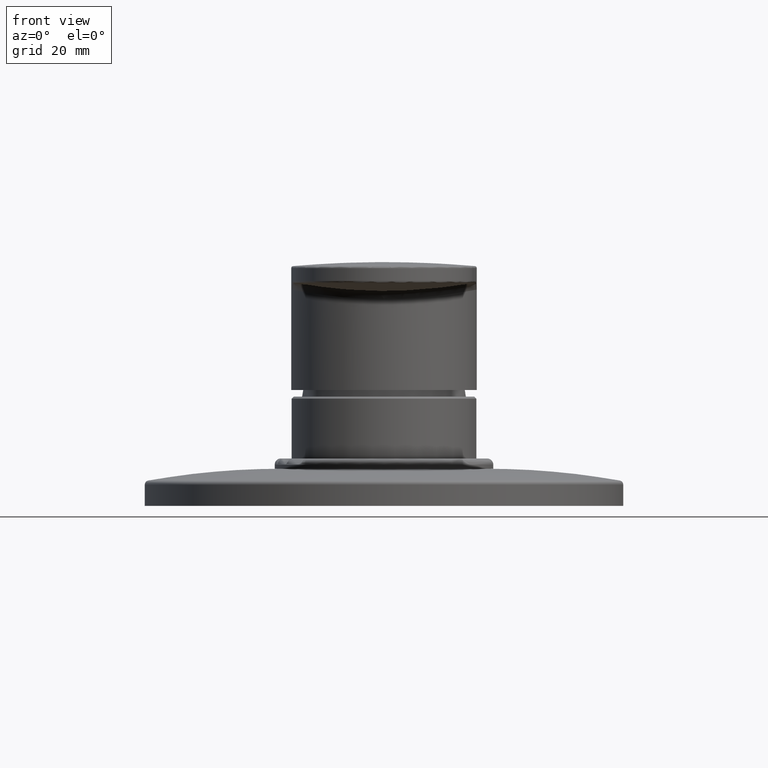
[diagram: clean part render]
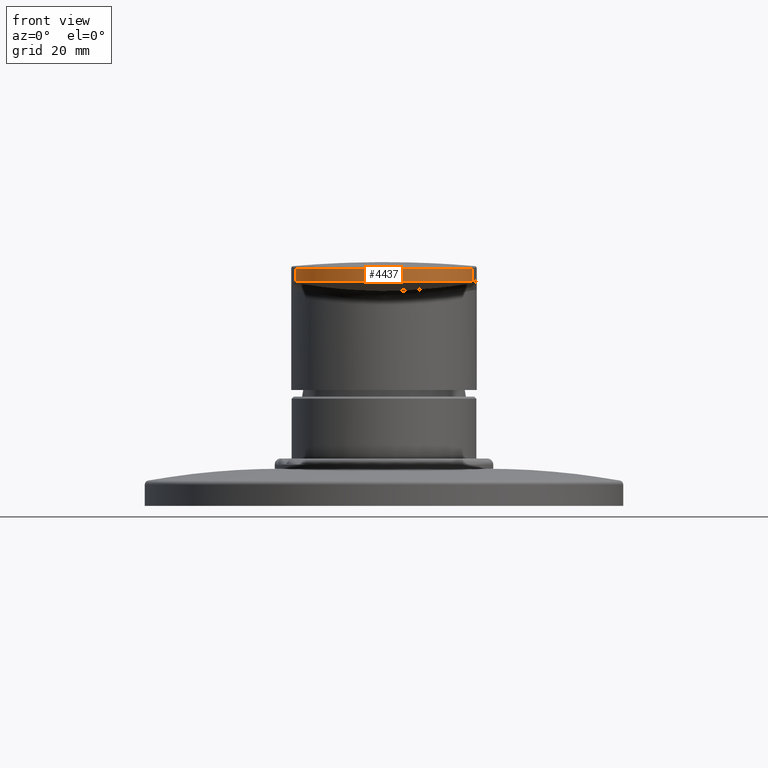
[diagram: same view with one face highlighted and labeled with its STEP entity id]
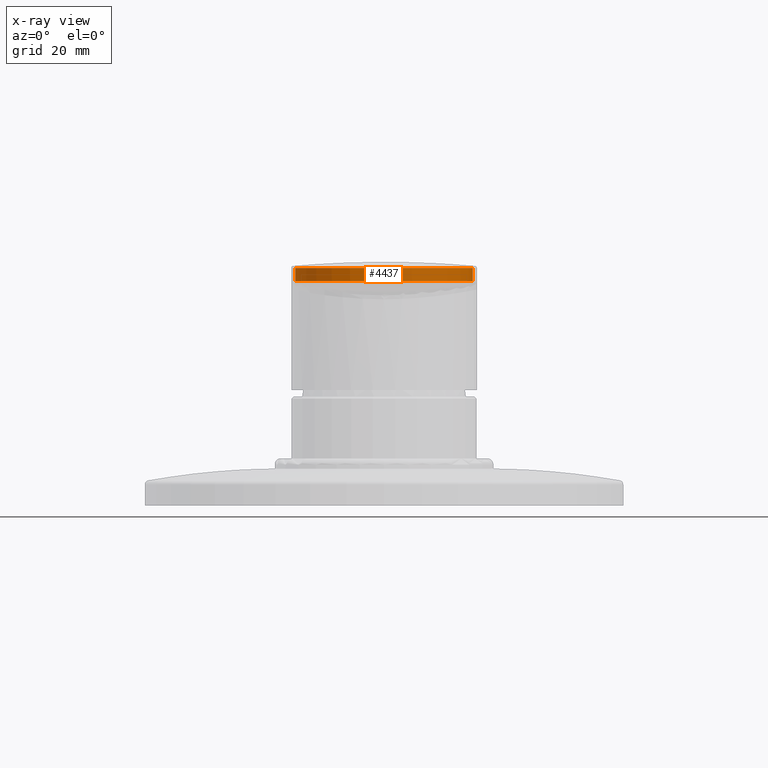
[diagram: x-ray of the same camera — body ghosted, the highlighted face saturated]
A machine part, front view. The second image highlights one B-rep face of the part: STEP entity #4437.
The next image is the same camera in x-ray: the body ghosted, the highlighted face saturated — about 0% of this face is hidden behind the body in this view.
In plain terms, the highlighted cylindrical surface (partial cylindrical patch) has radius 21.5 mm, axis along (0, 0, 1).
Its self-contained STEP definition (entity closure, byte-faithful):
#1734=CARTESIAN_POINT('',(2.149360380976E1,-4.152439023814E1,9.764343521014E1));
#1735=CARTESIAN_POINT('',(2.148554348504E1,-4.185469745667E1,9.764319577040E1));
#1736=CARTESIAN_POINT('',(2.145419893344E1,-4.251492851254E1,9.764274942118E1));
#1737=CARTESIAN_POINT('',(2.136158280484E1,-4.350206803126E1,9.764218639464E1));
#1738=CARTESIAN_POINT('',(2.122359385658E1,-4.448375930851E1,9.764173946256E1));
#1739=CARTESIAN_POINT('',(2.104051492699E1,-4.545805976151E1,9.764140386473E1));
#1740=CARTESIAN_POINT('',(2.081269697650E1,-4.642304277861E1,9.764117623653E1));
#1741=CARTESIAN_POINT('',(2.063131750310E1,-4.705868995830E1,9.764108557347E1));
#1742=CARTESIAN_POINT('',(2.053335345753E1,-4.737426663922E1,9.764105282116E1));
#1744=CARTESIAN_POINT('',(2.149360359549E1,-4.152439023291E1,9.451711591597E1));
#1745=CARTESIAN_POINT('',(2.148561598144E1,-4.185169888662E1,9.451754295465E1));
#1746=CARTESIAN_POINT('',(2.145469442280E1,-4.250591684149E1,9.451834106733E1));
#1747=CARTESIAN_POINT('',(2.136354682308E1,-4.348403126590E1,9.451935011363E1));
#1748=CARTESIAN_POINT('',(2.122786035070E1,-4.445679471936E1,9.452015015758E1));
#1749=CARTESIAN_POINT('',(2.104790725387E1,-4.542234446395E1,9.452074982006E1));
#1750=CARTESIAN_POINT('',(2.082402304236E1,-4.637882647775E1,9.452115407327E1));
#1751=CARTESIAN_POINT('',(2.064578717386E1,-4.700903393612E1,9.452131452776E1));
#1752=CARTESIAN_POINT('',(2.054952096438E1,-4.732195427945E1,9.452137268191E1));
#1754=CARTESIAN_POINT('',(2.054952096438E1,-4.732195427945E1,9.452137268191E1));
#1755=CARTESIAN_POINT('',(2.044014135280E1,-4.767747531587E1,9.452143783137E1));
#1756=CARTESIAN_POINT('',(2.020293585172E1,-4.838288028783E1,9.452159386465E1));
#1757=CARTESIAN_POINT('',(1.979261130280E1,-4.942127919107E1,9.452185281308E1));
#1758=CARTESIAN_POINT('',(1.932899167469E1,-5.043692059420E1,9.452207180482E1));
#1759=CARTESIAN_POINT('',(1.881328418749E1,-5.142716786358E1,9.452224259776E1));
#1760=CARTESIAN_POINT('',(1.824676520996E1,-5.238952417575E1,9.452236666309E1));
#1761=CARTESIAN_POINT('',(1.763094504038E1,-5.332134385539E1,9.452247164131E1));
#1762=CARTESIAN_POINT('',(1.696763634442E1,-5.421986968586E1,9.452261757914E1));
#1763=CARTESIAN_POINT('',(1.625861994312E1,-5.508271881601E1,9.452276417153E1));
#1764=CARTESIAN_POINT('',(1.550567605792E1,-5.590770912779E1,9.452284362295E1));
#1765=CARTESIAN_POINT('',(1.471089230931E1,-5.669252765031E1,9.452283941581E1));
#1766=CARTESIAN_POINT('',(1.387643808770E1,-5.743503163374E1,9.452274855945E1));
#1767=CARTESIAN_POINT('',(1.300452647267E1,-5.813324597951E1,9.452259387429E1));
#1768=CARTESIAN_POINT('',(1.209753040593E1,-5.878526338974E1,9.452244114408E1));
#1769=CARTESIAN_POINT('',(1.115788932057E1,-5.938932741262E1,9.452225698460E1));
#1770=CARTESIAN_POINT('',(1.018813087086E1,-5.994380807875E1,9.452198075831E1));
#1771=CARTESIAN_POINT('',(9.190874145006E0,-6.044720345374E1,9.452158060178E1));
#1772=CARTESIAN_POINT('',(8.168809179331E0,-6.08981522E1,9.452105154480E1));
#1773=CARTESIAN_POINT('',(7.124694302930E0,-6.129543404532E1,9.452040715558E1));
#1774=CARTESIAN_POINT('',(6.061348538438E0,-6.163797439896E1,9.451970325427E1));
#1775=CARTESIAN_POINT('',(4.981638119132E0,-6.192484606837E1,9.451893380932E1));
#1776=CARTESIAN_POINT('',(3.888496898482E0,-6.215527397076E1,9.451803163612E1));
#1777=CARTESIAN_POINT('',(2.784796299354E0,-6.232863358351E1,9.451691838175E1));
#1778=CARTESIAN_POINT('',(1.673808953471E0,-6.244446062845E1,9.451574137426E1));
#1779=CARTESIAN_POINT('',(5.574287589400E-1,-6.250242475809E1,
9.451392346433E1));
#1780=CARTESIAN_POINT('',(-5.572062438756E-1,-6.250243054513E1,
9.451392298475E1));
#1781=CARTESIAN_POINT('',(-1.673588766184E0,-6.244447784453E1,
9.451574115259E1));
#1782=CARTESIAN_POINT('',(-2.784579084451E0,-6.232866198396E1,
9.451691813561E1));
#1783=CARTESIAN_POINT('',(-3.888284167369E0,-6.215531311648E1,
9.451803145265E1));
#1784=CARTESIAN_POINT('',(-4.981429939003E0,-6.192489567471E1,
9.451893362367E1));
#1785=CARTESIAN_POINT('',(-6.061146262652E0,-6.163803387142E1,
9.451970325985E1));
#1786=CARTESIAN_POINT('',(-7.124498846953E0,-6.129550272262E1,
9.452040705181E1));
#1787=CARTESIAN_POINT('',(-8.168620492142E0,-6.089822971767E1,
9.452105138720E1));
#1788=CARTESIAN_POINT('',(-9.190692385781E0,-6.044728940566E1,
9.452158057096E1));
#1789=CARTESIAN_POINT('',(-1.018795665785E1,-5.994390185826E1,
9.452198051346E1));
#1790=CARTESIAN_POINT('',(-1.115772549033E1,-5.938942696960E1,
9.452225752607E1));
#1791=CARTESIAN_POINT('',(-1.209737868651E1,-5.878536676034E1,
9.452243992858E1));
#1792=CARTESIAN_POINT('',(-1.300438670750E1,-5.813335223773E1,
9.452259545161E1));
#1793=CARTESIAN_POINT('',(-1.387631148064E1,-5.743513882077E1,
9.452274762307E1));
#1794=CARTESIAN_POINT('',(-1.471078037538E1,-5.669263274111E1,
9.452283975204E1));
#1795=CARTESIAN_POINT('',(-1.550557271144E1,-5.590781686982E1,
9.452284361746E1));
#1796=CARTESIAN_POINT('',(-1.625853537396E1,-5.508281710480E1,
9.452276369812E1));
#1797=CARTESIAN_POINT('',(-1.696756837964E1,-5.421995710737E1,
9.452261919321E1));
#1798=CARTESIAN_POINT('',(-1.763088090995E1,-5.332143566304E1,
9.452247065262E1));
#1799=CARTESIAN_POINT('',(-1.824671395055E1,-5.238960718653E1,
9.452236555841E1));
#1800=CARTESIAN_POINT('',(-1.881325364533E1,-5.142722416433E1,
9.452224339855E1));
#1801=CARTESIAN_POINT('',(-1.932897569141E1,-5.043695412444E1,
9.452207194824E1));
#1802=CARTESIAN_POINT('',(-1.979260426914E1,-4.942129668252E1,
9.452185282610E1));
#1803=CARTESIAN_POINT('',(-2.020293541391E1,-4.838288151155E1,
9.452159400690E1));
#1804=CARTESIAN_POINT('',(-2.044014195088E1,-4.767747478986E1,
9.452143786750E1));
#1805=CARTESIAN_POINT('',(-2.054952108316E1,-4.732195431608E1,
9.452137268191E1));
#1807=CARTESIAN_POINT('',(-2.054952108316E1,-4.732195431608E1,
9.452137268191E1));
#1808=CARTESIAN_POINT('',(-2.064579212536E1,-4.700901843967E1,
9.452131453118E1));
#1809=CARTESIAN_POINT('',(-2.082403563831E1,-4.637878039862E1,
9.452115412718E1));
#1810=CARTESIAN_POINT('',(-2.104792794522E1,-4.542224944671E1,
9.452074973539E1));
#1811=CARTESIAN_POINT('',(-2.122788203258E1,-4.445666380383E1,
9.452015011933E1));
#1812=CARTESIAN_POINT('',(-2.136356351662E1,-4.348388776771E1,
9.451934996816E1));
#1813=CARTESIAN_POINT('',(-2.145470106112E1,-4.250580387221E1,
9.451834094229E1));
#1814=CARTESIAN_POINT('',(-2.148561770690E1,-4.185165431658E1,
9.451754297469E1));
#1815=CARTESIAN_POINT('',(-2.149360379656E1,-4.152439023782E1,
9.451711591597E1));
#1817=DIRECTION('',(-7.539721465598E-9,-1.840631380988E-10,-1.E0));
#1818=VECTOR('',#1817,3.126319294165E0);
#1819=CARTESIAN_POINT('',(-2.149360377299E1,-4.152439023725E1,
9.764343521014E1));
#1820=LINE('',#1819,#1818);
#1821=CARTESIAN_POINT('',(-2.053335361434E1,-4.737426668807E1,
9.764105282116E1));
#1822=CARTESIAN_POINT('',(-2.063131662073E1,-4.705869332202E1,
9.764108557368E1));
#1823=CARTESIAN_POINT('',(-2.081269417708E1,-4.642305259208E1,
9.764117624155E1));
#1824=CARTESIAN_POINT('',(-2.104051048397E1,-4.545808010265E1,
9.764140385557E1));
#1825=CARTESIAN_POINT('',(-2.122358917098E1,-4.448378733433E1,
9.764173945698E1));
#1826=CARTESIAN_POINT('',(-2.136157920448E1,-4.350209876909E1,
9.764218637721E1));
#1827=CARTESIAN_POINT('',(-2.145419750530E1,-4.251495268580E1,
9.764274940653E1));
#1828=CARTESIAN_POINT('',(-2.148554311437E1,-4.185470699325E1,
9.764319577211E1));
#1829=CARTESIAN_POINT('',(-2.149360377299E1,-4.152439023725E1,
9.764343521014E1));
#1831=CARTESIAN_POINT('',(2.053335345753E1,-4.737426663922E1,9.764105282116E1));
#1832=CARTESIAN_POINT('',(2.042325913306E1,-4.772889234283E1,9.764101652832E1));
#1833=CARTESIAN_POINT('',(2.018471518871E1,-4.843245117772E1,9.764093073665E1));
#1834=CARTESIAN_POINT('',(1.977266161647E1,-4.946791984963E1,9.764078944998E1));
#1835=CARTESIAN_POINT('',(1.930759713323E1,-5.048053133195E1,9.764066790595E1));
#1836=CARTESIAN_POINT('',(1.879071003719E1,-5.146771684197E1,9.764056926836E1));
#1837=CARTESIAN_POINT('',(1.822327165042E1,-5.242700496782E1,9.764049711293E1));
#1838=CARTESIAN_POINT('',(1.760680885177E1,-5.335574183119E1,9.764043232990E1));
#1839=CARTESIAN_POINT('',(1.694312833959E1,-5.425120289126E1,9.764034689347E1));
#1840=CARTESIAN_POINT('',(1.623397816046E1,-5.511105906881E1,9.764026704163E1));
#1841=CARTESIAN_POINT('',(1.548115390052E1,-5.593311660844E1,9.764021875842E1));
#1842=CARTESIAN_POINT('',(1.468674553846E1,-5.671507525742E1,9.764021412838E1));
#1843=CARTESIAN_POINT('',(1.385289060663E1,-5.745483296817E1,9.764025560743E1));
#1844=CARTESIAN_POINT('',(1.298180361859E1,-5.815041976472E1,9.764032833681E1));
#1845=CARTESIAN_POINT('',(1.207584347222E1,-5.879994754103E1,9.764040768614E1));
#1846=CARTESIAN_POINT('',(1.113743597513E1,-5.940167556435E1,9.764050183030E1));
#1847=CARTESIAN_POINT('',(1.016909610067E1,-5.995398747632E1,9.764064687010E1));
#1848=CARTESIAN_POINT('',(9.173428264306E0,-6.045539464977E1,9.764085603154E1));
#1849=CARTESIAN_POINT('',(8.153106573141E0,-6.090454798127E1,9.764113338577E1));
#1850=CARTESIAN_POINT('',(7.110873375893E0,-6.130023801609E1,9.764147261336E1));
#1851=CARTESIAN_POINT('',(6.049530072981E0,-6.164139964079E1,9.764184736064E1));
#1852=CARTESIAN_POINT('',(4.971927188554E0,-6.192711468138E1,9.764226053538E1));
#1853=CARTESIAN_POINT('',(3.880964997891E0,-6.215661445741E1,9.764274523703E1));
#1854=CARTESIAN_POINT('',(2.779554946983E0,-6.232928073902E1,9.764334216352E1));
#1855=CARTESIAN_POINT('',(1.670733721937E0,-6.244464991588E1,9.764397414262E1));
#1856=CARTESIAN_POINT('',(5.571919785071E-1,-6.250240680793E1,
9.764494335580E1));
#1857=CARTESIAN_POINT('',(-5.569954875632E-1,-6.250241190980E1,
9.764494357739E1));
#1858=CARTESIAN_POINT('',(-1.670538813021E0,-6.244466512170E1,
9.764397425013E1));
#1859=CARTESIAN_POINT('',(-2.779362334015E0,-6.232930586190E1,
9.764334227869E1));
#1860=CARTESIAN_POINT('',(-3.880775390871E0,-6.215664926651E1,
9.764274533070E1));
#1861=CARTESIAN_POINT('',(-4.971741419238E0,-6.192715885288E1,
9.764226060232E1));
#1862=CARTESIAN_POINT('',(-6.049349084281E0,-6.164145273021E1,
9.764184745786E1));
#1863=CARTESIAN_POINT('',(-7.110698094977E0,-6.130029947224E1,
9.764147265695E1));
#1864=CARTESIAN_POINT('',(-8.152937949968E0,-6.090461711920E1,
9.764113343022E1));
#1865=CARTESIAN_POINT('',(-9.173267065600E0,-6.045547074139E1,
9.764085605346E1));
#1866=CARTESIAN_POINT('',(-1.016894334112E1,-5.995406953002E1,
9.764064698248E1));
#1867=CARTESIAN_POINT('',(-1.113729213310E1,-5.940176274303E1,
9.764050162983E1));
#1868=CARTESIAN_POINT('',(-1.207570989507E1,-5.880003830633E1,
9.764040819850E1));
#1869=CARTESIAN_POINT('',(-1.298168004382E1,-5.815051342698E1,
9.764032790536E1));
#1870=CARTESIAN_POINT('',(-1.385277758956E1,-5.745492835981E1,
9.764025573715E1));
#1871=CARTESIAN_POINT('',(-1.468664597361E1,-5.671516846410E1,
9.764021415477E1));
#1872=CARTESIAN_POINT('',(-1.548106147052E1,-5.593321258879E1,
9.764021855222E1));
#1873=CARTESIAN_POINT('',(-1.623390098378E1,-5.511114845350E1,
9.764026748119E1));
#1874=CARTESIAN_POINT('',(-1.694306795654E1,-5.425128032065E1,
9.764034625366E1));
#1875=CARTESIAN_POINT('',(-1.760675094212E1,-5.335582427534E1,
9.764043210527E1));
#1876=CARTESIAN_POINT('',(-1.822322360676E1,-5.242708235007E1,
9.764049773644E1));
#1877=CARTESIAN_POINT('',(-1.879068160931E1,-5.146776902423E1,
9.764056903126E1));
#1878=CARTESIAN_POINT('',(-1.930758243859E1,-5.048056196521E1,
9.764066779571E1));
#1879=CARTESIAN_POINT('',(-1.977265470397E1,-4.946793681194E1,
9.764078945629E1));
#1880=CARTESIAN_POINT('',(-2.018471399065E1,-4.843245436792E1,
9.764093065428E1));
#1881=CARTESIAN_POINT('',(-2.042325946326E1,-4.772889280095E1,
9.764101651531E1));
#1882=CARTESIAN_POINT('',(-2.053335361434E1,-4.737426668807E1,
9.764105282116E1));
#1911=CARTESIAN_POINT('',(-2.149360379656E1,-4.152439023782E1,
9.451711591597E1));
#1992=CARTESIAN_POINT('',(2.149360380976E1,-4.152439023814E1,9.764343521014E1));
#2034=DIRECTION('',(-6.853641039117E-8,1.674302723744E-9,-1.E0));
#2035=VECTOR('',#2034,3.126319294165E0);
#2036=CARTESIAN_POINT('',(2.149360380976E1,-4.152439023814E1,9.764343521014E1));
#2037=LINE('',#2036,#2035);
#3577=VERTEX_POINT('',#1992);
#3580=VERTEX_POINT('',#1742);
#3582=VERTEX_POINT('',#1882);
#3584=VERTEX_POINT('',#1829);
#3606=VERTEX_POINT('',#1911);
#3608=VERTEX_POINT('',#1807);
#3610=VERTEX_POINT('',#1754);
#3612=VERTEX_POINT('',#1744);
#4416=CARTESIAN_POINT('',(5.855672791745E-14,-4.1E1,9.41E1));
#4417=DIRECTION('',(0.E0,0.E0,1.E0));
#4418=DIRECTION('',(1.E0,0.E0,0.E0));
#4419=AXIS2_PLACEMENT_3D('',#4416,#4417,#4418);
#4420=CYLINDRICAL_SURFACE('',#4419,2.15E1);
#4422=ORIENTED_EDGE('',*,*,#4421,.F.);
#4424=ORIENTED_EDGE('',*,*,#4423,.T.);
#4425=ORIENTED_EDGE('',*,*,#4403,.T.);
#4426=ORIENTED_EDGE('',*,*,#4065,.T.);
#4428=ORIENTED_EDGE('',*,*,#4427,.T.);
#4430=ORIENTED_EDGE('',*,*,#4429,.F.);
#4432=ORIENTED_EDGE('',*,*,#4431,.F.);
#4434=ORIENTED_EDGE('',*,*,#4433,.F.);
#4435=EDGE_LOOP('',(#4422,#4424,#4425,#4426,#4428,#4430,#4432,#4434));
#4436=FACE_OUTER_BOUND('',#4435,.F.);
#4437=ADVANCED_FACE('',(#4436),#4420,.T.);
#1743=B_SPLINE_CURVE_WITH_KNOTS('',3,(#1734,#1735,#1736,#1737,#1738,#1739,#1740,
#1741,#1742),.UNSPECIFIED.,.F.,.F.,(4,1,1,1,1,1,4),(0.E0,1.666666666667E-1,
3.333333333333E-1,5.E-1,6.666666666667E-1,8.333333333333E-1,1.E0),
.UNSPECIFIED.);
#1753=B_SPLINE_CURVE_WITH_KNOTS('',3,(#1744,#1745,#1746,#1747,#1748,#1749,#1750,
#1751,#1752),.UNSPECIFIED.,.F.,.F.,(4,1,1,1,1,1,4),(0.E0,1.666666666667E-1,
3.333333333333E-1,5.E-1,6.666666666667E-1,8.333333333333E-1,1.E0),
.UNSPECIFIED.);
#1806=B_SPLINE_CURVE_WITH_KNOTS('',3,(#1754,#1755,#1756,#1757,#1758,#1759,#1760,
#1761,#1762,#1763,#1764,#1765,#1766,#1767,#1768,#1769,#1770,#1771,#1772,#1773,
#1774,#1775,#1776,#1777,#1778,#1779,#1780,#1781,#1782,#1783,#1784,#1785,#1786,
#1787,#1788,#1789,#1790,#1791,#1792,#1793,#1794,#1795,#1796,#1797,#1798,#1799,
#1800,#1801,#1802,#1803,#1804,#1805),.UNSPECIFIED.,.F.,.F.,(4,1,1,1,1,1,1,1,1,1,
1,1,1,1,1,1,1,1,1,1,1,1,1,1,1,1,1,1,1,1,1,1,1,1,1,1,1,1,1,1,1,1,1,1,1,1,1,1,1,
4),(0.E0,2.040816326531E-2,4.081632653061E-2,6.122448979592E-2,
8.163265306122E-2,1.020408163265E-1,1.224489795918E-1,1.428571428571E-1,
1.632653061224E-1,1.836734693878E-1,2.040816326531E-1,2.244897959184E-1,
2.448979591837E-1,2.653061224490E-1,2.857142857143E-1,3.061224489796E-1,
3.265306122449E-1,3.469387755102E-1,3.673469387755E-1,3.877551020408E-1,
4.081632653061E-1,4.285714285714E-1,4.489795918367E-1,4.693877551020E-1,
4.897959183673E-1,5.102040816327E-1,5.306122448980E-1,5.510204081633E-1,
5.714285714286E-1,5.918367346939E-1,6.122448979592E-1,6.326530612245E-1,
6.530612244898E-1,6.734693877551E-1,6.938775510204E-1,7.142857142857E-1,
7.346938775510E-1,7.551020408163E-1,7.755102040816E-1,7.959183673469E-1,
8.163265306122E-1,8.367346938776E-1,8.571428571429E-1,8.775510204082E-1,
8.979591836735E-1,9.183673469388E-1,9.387755102041E-1,9.591836734694E-1,
9.795918367347E-1,1.E0),.UNSPECIFIED.);
#1816=B_SPLINE_CURVE_WITH_KNOTS('',3,(#1807,#1808,#1809,#1810,#1811,#1812,#1813,
#1814,#1815),.UNSPECIFIED.,.F.,.F.,(4,1,1,1,1,1,4),(0.E0,1.666666666667E-1,
3.333333333333E-1,5.E-1,6.666666666667E-1,8.333333333333E-1,1.E0),
.UNSPECIFIED.);
#1830=B_SPLINE_CURVE_WITH_KNOTS('',3,(#1821,#1822,#1823,#1824,#1825,#1826,#1827,
#1828,#1829),.UNSPECIFIED.,.F.,.F.,(4,1,1,1,1,1,4),(0.E0,1.666666666667E-1,
3.333333333333E-1,5.E-1,6.666666666667E-1,8.333333333333E-1,1.E0),
.UNSPECIFIED.);
#1883=B_SPLINE_CURVE_WITH_KNOTS('',3,(#1831,#1832,#1833,#1834,#1835,#1836,#1837,
#1838,#1839,#1840,#1841,#1842,#1843,#1844,#1845,#1846,#1847,#1848,#1849,#1850,
#1851,#1852,#1853,#1854,#1855,#1856,#1857,#1858,#1859,#1860,#1861,#1862,#1863,
#1864,#1865,#1866,#1867,#1868,#1869,#1870,#1871,#1872,#1873,#1874,#1875,#1876,
#1877,#1878,#1879,#1880,#1881,#1882),.UNSPECIFIED.,.F.,.F.,(4,1,1,1,1,1,1,1,1,1,
1,1,1,1,1,1,1,1,1,1,1,1,1,1,1,1,1,1,1,1,1,1,1,1,1,1,1,1,1,1,1,1,1,1,1,1,1,1,1,
4),(0.E0,2.040816326531E-2,4.081632653061E-2,6.122448979592E-2,
8.163265306122E-2,1.020408163265E-1,1.224489795918E-1,1.428571428571E-1,
1.632653061224E-1,1.836734693878E-1,2.040816326531E-1,2.244897959184E-1,
2.448979591837E-1,2.653061224490E-1,2.857142857143E-1,3.061224489796E-1,
3.265306122449E-1,3.469387755102E-1,3.673469387755E-1,3.877551020408E-1,
4.081632653061E-1,4.285714285714E-1,4.489795918367E-1,4.693877551020E-1,
4.897959183673E-1,5.102040816327E-1,5.306122448980E-1,5.510204081633E-1,
5.714285714286E-1,5.918367346939E-1,6.122448979592E-1,6.326530612245E-1,
6.530612244898E-1,6.734693877551E-1,6.938775510204E-1,7.142857142857E-1,
7.346938775510E-1,7.551020408163E-1,7.755102040816E-1,7.959183673469E-1,
8.163265306122E-1,8.367346938776E-1,8.571428571429E-1,8.775510204082E-1,
8.979591836735E-1,9.183673469388E-1,9.387755102041E-1,9.591836734694E-1,
9.795918367347E-1,1.E0),.UNSPECIFIED.);
#4065=EDGE_CURVE('',#3610,#3608,#1806,.T.);
#4403=EDGE_CURVE('',#3612,#3610,#1753,.T.);
#4421=EDGE_CURVE('',#3577,#3580,#1743,.T.);
#4423=EDGE_CURVE('',#3577,#3612,#2037,.T.);
#4427=EDGE_CURVE('',#3608,#3606,#1816,.T.);
#4429=EDGE_CURVE('',#3584,#3606,#1820,.T.);
#4431=EDGE_CURVE('',#3582,#3584,#1830,.T.);
#4433=EDGE_CURVE('',#3580,#3582,#1883,.T.);